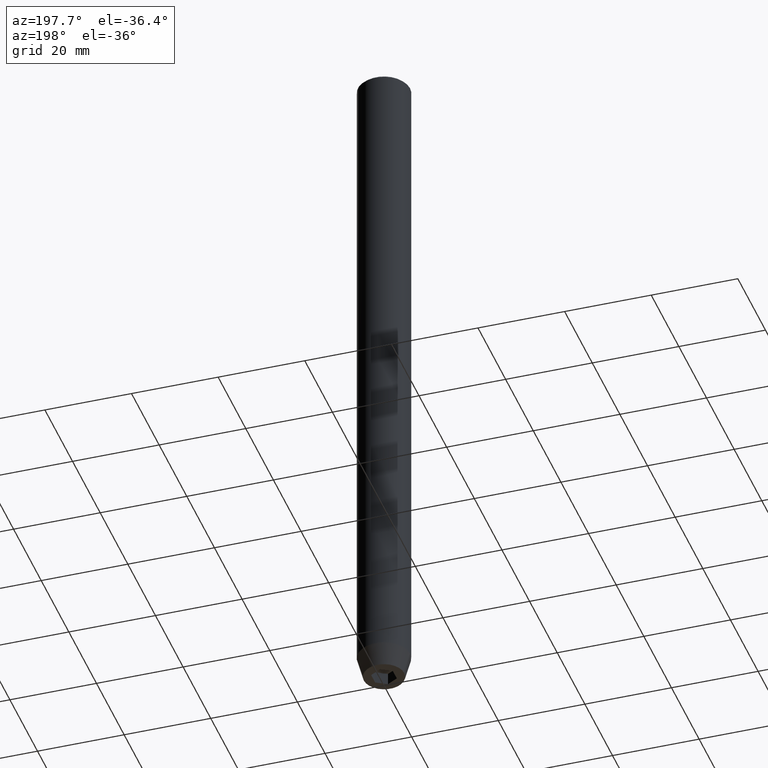
[diagram: clean part render]
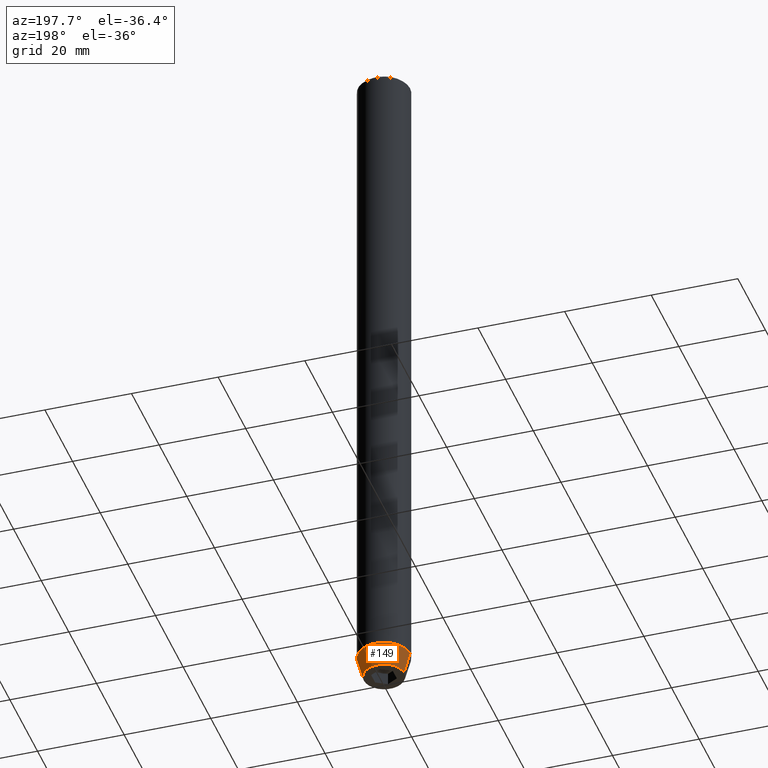
[diagram: same view with one face highlighted and labeled with its STEP entity id]
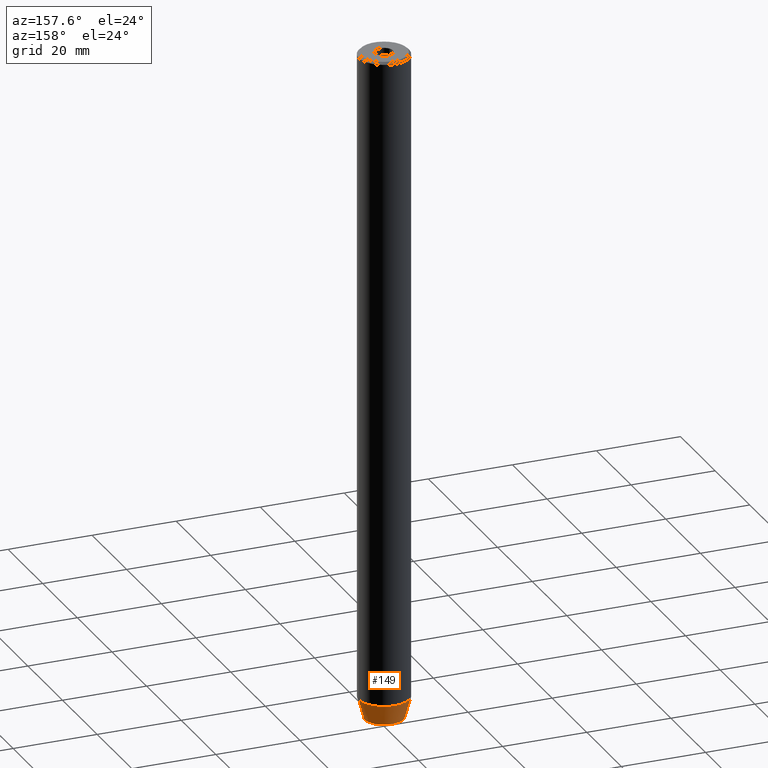
[diagram: same view with one face highlighted and labeled with its STEP entity id]
A machine part, auxiliary view. The second image highlights one B-rep face of the part: STEP entity #149.
A second angle (auxiliary view) of the same face is appended — the face is thin or edge-on in the first view.
In plain terms, the highlighted conical surface has half-angle 15 deg.
Its self-contained STEP definition (entity closure, byte-faithful):
#2 = AXIS2_PLACEMENT_3D ( 'NONE', #379, #235, #511 ) ;
#8 = VERTEX_POINT ( 'NONE', #580 ) ;
#20 = AXIS2_PLACEMENT_3D ( 'NONE', #284, #141, #430 ) ;
#40 = CARTESIAN_POINT ( 'NONE',  ( 6.000000000000000000, 0.000000000000000000, -154.9999999999999716 ) ) ;
#63 = AXIS2_PLACEMENT_3D ( 'NONE', #84, #452, #578 ) ;
#65 = LINE ( 'NONE', #246, #436 ) ;
#84 = CARTESIAN_POINT ( 'NONE',  ( 0.000000000000000000, 0.000000000000000000, -154.9999999999999716 ) ) ;
#109 = VERTEX_POINT ( 'NONE', #315 ) ;
#110 = CIRCLE ( 'NONE', #2, 4.660254037844373975 ) ;
#115 = FACE_OUTER_BOUND ( 'NONE', #316, .T. ) ;
#121 = CARTESIAN_POINT ( 'NONE',  ( -4.660254037844373975, 6.527522992771880386E-16, -160.0000000000000000 ) ) ;
#122 = ORIENTED_EDGE ( 'NONE', *, *, #350, .F. ) ;
#123 = DIRECTION ( 'NONE',  ( 0.2588190451025214056, 0.000000000000000000, 0.9659258262890680902 ) ) ;
#141 = DIRECTION ( 'NONE',  ( -0.000000000000000000, -0.000000000000000000, 1.000000000000000000 ) ) ;
#149 = ADVANCED_FACE ( 'NONE', ( #115 ), #515, .T. ) ;
#179 = CARTESIAN_POINT ( 'NONE',  ( -6.000000000000000000, 7.347880794884119736E-16, -154.9999999999999716 ) ) ;
#184 = DIRECTION ( 'NONE',  ( -0.2588190451025214056, 3.169619151431772953E-17, 0.9659258262890680902 ) ) ;
#187 = VECTOR ( 'NONE', #123, 1000.000000000000000 ) ;
#235 = DIRECTION ( 'NONE',  ( -0.000000000000000000, -0.000000000000000000, 1.000000000000000000 ) ) ;
#246 = CARTESIAN_POINT ( 'NONE',  ( -6.000000000000000000, 7.347880794884119736E-16, -154.9999999999999716 ) ) ;
#263 = LINE ( 'NONE', #40, #187 ) ;
#277 = ORIENTED_EDGE ( 'NONE', *, *, #483, .T. ) ;
#284 = CARTESIAN_POINT ( 'NONE',  ( 0.000000000000000000, 0.000000000000000000, -154.9999999999999716 ) ) ;
#315 = CARTESIAN_POINT ( 'NONE',  ( 4.660254037844373975, 0.000000000000000000, -160.0000000000000000 ) ) ;
#316 = EDGE_LOOP ( 'NONE', ( #277, #478, #122, #336 ) ) ;
#336 = ORIENTED_EDGE ( 'NONE', *, *, #363, .F. ) ;
#350 = EDGE_CURVE ( 'NONE', #8, #408, #434, .T. ) ;
#363 = EDGE_CURVE ( 'NONE', #109, #8, #263, .T. ) ;
#375 = VERTEX_POINT ( 'NONE', #121 ) ;
#379 = CARTESIAN_POINT ( 'NONE',  ( 0.000000000000000000, 0.000000000000000000, -160.0000000000000000 ) ) ;
#408 = VERTEX_POINT ( 'NONE', #179 ) ;
#430 = DIRECTION ( 'NONE',  ( 1.000000000000000000, 0.000000000000000000, 0.000000000000000000 ) ) ;
#434 = CIRCLE ( 'NONE', #63, 6.000000000000000000 ) ;
#436 = VECTOR ( 'NONE', #184, 1000.000000000000000 ) ;
#452 = DIRECTION ( 'NONE',  ( -0.000000000000000000, -0.000000000000000000, 1.000000000000000000 ) ) ;
#478 = ORIENTED_EDGE ( 'NONE', *, *, #559, .T. ) ;
#483 = EDGE_CURVE ( 'NONE', #109, #375, #110, .T. ) ;
#511 = DIRECTION ( 'NONE',  ( 1.000000000000000000, 0.000000000000000000, 0.000000000000000000 ) ) ;
#515 = CONICAL_SURFACE ( 'NONE', #20, 6.000000000000000000, 0.2617993877991501295 ) ;
#559 = EDGE_CURVE ( 'NONE', #375, #408, #65, .T. ) ;
#578 = DIRECTION ( 'NONE',  ( 1.000000000000000000, 0.000000000000000000, 0.000000000000000000 ) ) ;
#580 = CARTESIAN_POINT ( 'NONE',  ( 6.000000000000000000, 0.000000000000000000, -154.9999999999999716 ) ) ;